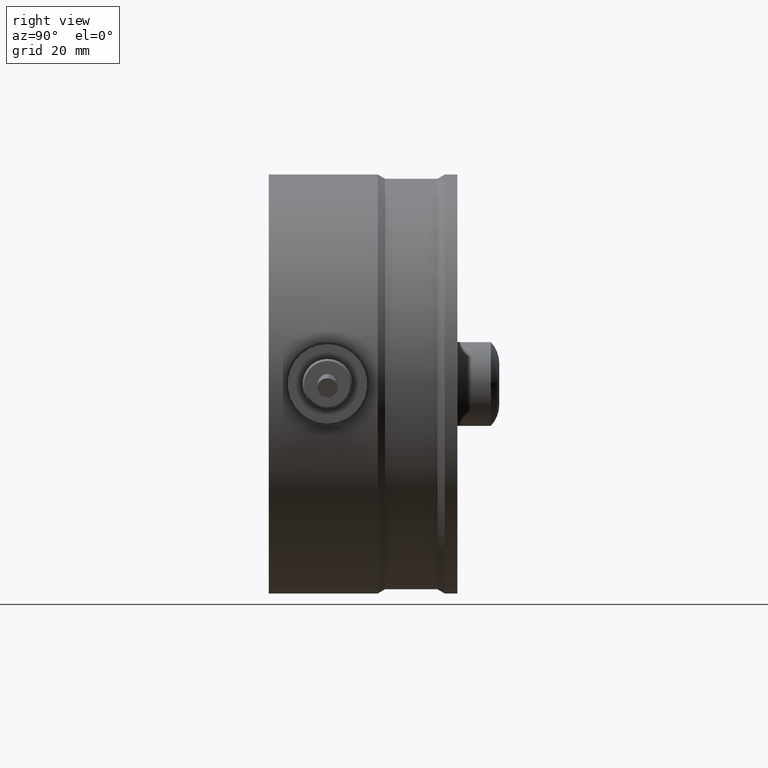
[diagram: clean part render]
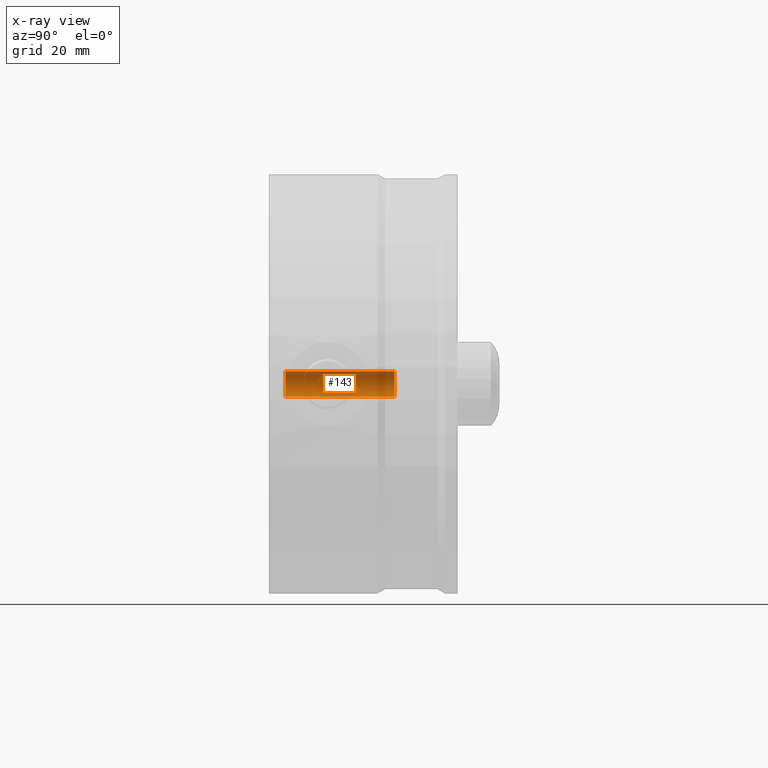
[diagram: x-ray — body ghosted, one internal face saturated and labeled with its STEP entity id]
A machine part, right view, then the same camera in x-ray: the body is ghosted and one INTERNAL B-rep face — a face not visible from any outside direction — is saturated and labeled: STEP entity #143.
In plain terms, the highlighted cylindrical surface (edge-blend (fillet) strip) has radius 3 mm, axis along (-0, 1, -0).
Its self-contained STEP definition (entity closure, byte-faithful):
#73 = ORIENTED_EDGE ( 'NONE', *, *, #74, .F. ) ;
#74 = EDGE_CURVE ( 'NONE', #165, #147, #517, .T. ) ;
#89 = EDGE_LOOP ( 'NONE', ( #182, #152, #163, #73 ) ) ;
#142 = VERTEX_POINT ( 'NONE', #637 ) ;
#143 = ADVANCED_FACE ( 'NONE', ( #636 ), #689, .F. ) ;
#146 = EDGE_CURVE ( 'NONE', #147, #158, #675, .T. ) ;
#147 = VERTEX_POINT ( 'NONE', #665 ) ;
#152 = ORIENTED_EDGE ( 'NONE', *, *, #164, .T. ) ;
#158 = VERTEX_POINT ( 'NONE', #662 ) ;
#163 = ORIENTED_EDGE ( 'NONE', *, *, #146, .F. ) ;
#164 = EDGE_CURVE ( 'NONE', #142, #158, #733, .T. ) ;
#165 = VERTEX_POINT ( 'NONE', #804 ) ;
#166 = EDGE_CURVE ( 'NONE', #165, #142, #799, .T. ) ;
#182 = ORIENTED_EDGE ( 'NONE', *, *, #166, .T. ) ;
#514 = DIRECTION ( 'NONE',  ( -0.0000000000000000000, 1.000000000000000000, -0.0000000000000000000 ) ) ;
#515 = VECTOR ( 'NONE', #514, 1000.000000000000000 ) ;
#516 = CARTESIAN_POINT ( 'NONE',  ( 0.0000000000000000000, 40.99999999999999300, 3.000000000000006200 ) ) ;
#517 = LINE ( 'NONE', #516, #515 ) ;
#636 = FACE_OUTER_BOUND ( 'NONE', #89, .T. ) ;
#637 = CARTESIAN_POINT ( 'NONE',  ( 3.673819061467139200E-016, 0.0000000000000000000, -3.000000000000006200 ) ) ;
#662 = CARTESIAN_POINT ( 'NONE',  ( 3.673819061467139200E-016, 25.99999999999999600, -3.000000000000006200 ) ) ;
#665 = CARTESIAN_POINT ( 'NONE',  ( 0.0000000000000000000, 25.99999999999999600, 3.000000000000006200 ) ) ;
#671 = DIRECTION ( 'NONE',  ( 0.0000000000000000000, 0.0000000000000000000, 1.000000000000000000 ) ) ;
#672 = DIRECTION ( 'NONE',  ( -0.0000000000000000000, -1.000000000000000000, -0.0000000000000000000 ) ) ;
#673 = CARTESIAN_POINT ( 'NONE',  ( 0.0000000000000000000, 25.99999999999999600, 0.0000000000000000000 ) ) ;
#674 = AXIS2_PLACEMENT_3D ( 'NONE', #673, #672, #671 ) ;
#675 = CIRCLE ( 'NONE', #674, 3.000000000000006200 ) ;
#688 = CARTESIAN_POINT ( 'NONE',  ( 0.0000000000000000000, 40.99999999999999300, 0.0000000000000000000 ) ) ;
#689 = CYLINDRICAL_SURFACE ( 'NONE', #715, 3.000000000000006200 ) ;
#713 = DIRECTION ( 'NONE',  ( 0.0000000000000000000, 0.0000000000000000000, 1.000000000000000000 ) ) ;
#714 = DIRECTION ( 'NONE',  ( -0.0000000000000000000, 1.000000000000000000, -0.0000000000000000000 ) ) ;
#715 = AXIS2_PLACEMENT_3D ( 'NONE', #688, #714, #713 ) ;
#726 = DIRECTION ( 'NONE',  ( -0.0000000000000000000, 1.000000000000000000, -0.0000000000000000000 ) ) ;
#729 = CARTESIAN_POINT ( 'NONE',  ( 3.673819061467139200E-016, 40.99999999999999300, -3.000000000000006200 ) ) ;
#732 = VECTOR ( 'NONE', #726, 1000.000000000000000 ) ;
#733 = LINE ( 'NONE', #729, #732 ) ;
#798 = DIRECTION ( 'NONE',  ( 0.0000000000000000000, 0.0000000000000000000, -1.000000000000000000 ) ) ;
#799 = CIRCLE ( 'NONE', #840, 3.000000000000006200 ) ;
#804 = CARTESIAN_POINT ( 'NONE',  ( 0.0000000000000000000, 0.0000000000000000000, 3.000000000000006200 ) ) ;
#816 = CARTESIAN_POINT ( 'NONE',  ( 0.0000000000000000000, 0.0000000000000000000, 0.0000000000000000000 ) ) ;
#837 = DIRECTION ( 'NONE',  ( -0.0000000000000000000, -1.000000000000000000, -0.0000000000000000000 ) ) ;
#840 = AXIS2_PLACEMENT_3D ( 'NONE', #816, #837, #798 ) ;